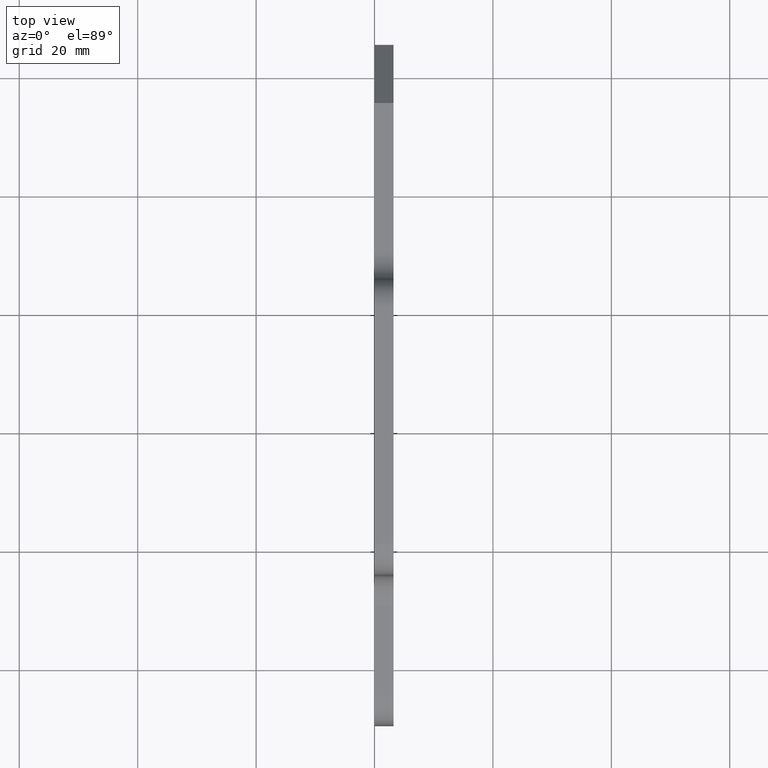
[diagram: clean part render]
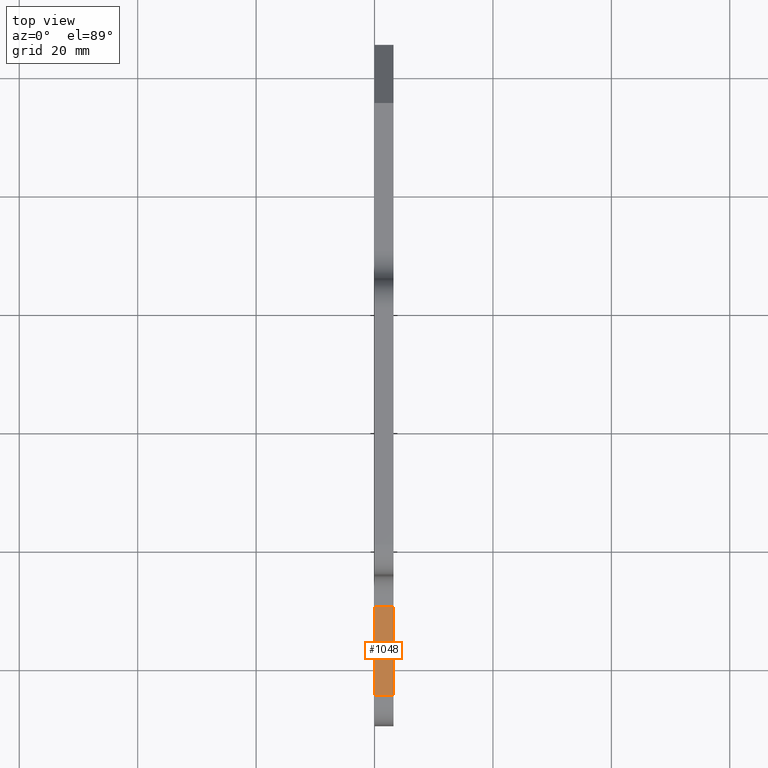
[diagram: same view with one face highlighted and labeled with its STEP entity id]
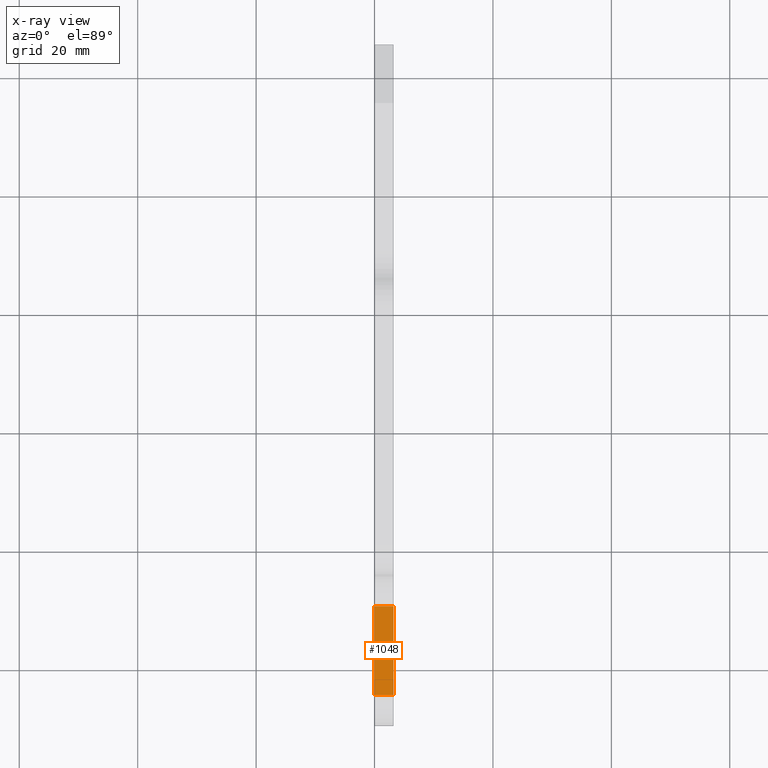
[diagram: x-ray of the same camera — body ghosted, the highlighted face saturated]
A machine part, top view. The second image highlights one B-rep face of the part: STEP entity #1048.
The next image is the same camera in x-ray: the body ghosted, the highlighted face saturated — about 0% of this face is hidden behind the body in this view.
In plain terms, the highlighted face is a freeform B-spline surface patch.
Its self-contained STEP definition (entity closure, byte-faithful):
#974=CARTESIAN_POINT('',(0.0,-29.500000000000000,5.000000000000100));
#975=VERTEX_POINT('',#974);
#991=CARTESIAN_POINT('',(3.200000000000000,-29.500000000000000,5.000000000000100));
#992=VERTEX_POINT('',#991);
#993=CARTESIAN_POINT('',(3.200000000000000,-29.500000000000000,5.000000000000100));
#994=CARTESIAN_POINT('',(0.0,-29.500000000000000,5.000000000000100));
#995=QUASI_UNIFORM_CURVE('',1,(#993,#994),.UNSPECIFIED.,.F.,.U.);
#996=EDGE_CURVE('',#992,#975,#995,.T.);
#1021=CARTESIAN_POINT('',(-0.159839993797779,-28.750750029072911,5.000000000000100));
#1022=CARTESIAN_POINT('',(-0.159839993797779,-45.249250373258448,5.000000000000100));
#1023=CARTESIAN_POINT('',(3.359840079628468,-28.750750029072911,5.000000000000100));
#1024=CARTESIAN_POINT('',(3.359840079628468,-45.249250373258448,5.000000000000100));
#1025=B_SPLINE_SURFACE_WITH_KNOTS('',1,1,((#1021,#1023),(#1022,#1024)),.UNSPECIFIED.,.F.,.F.,.U.,(2,2),(2,2),(0.0,16.498500344185540),(0.0,3.519680073426247),.UNSPECIFIED.);
#1026=CARTESIAN_POINT('',(0.0,-44.500000000000000,5.0));
#1027=VERTEX_POINT('',#1026);
#1028=CARTESIAN_POINT('',(0.0,-44.500000000000000,5.0));
#1029=CARTESIAN_POINT('',(0.0,-29.500000000000000,5.000000000000100));
#1030=QUASI_UNIFORM_CURVE('',1,(#1028,#1029),.UNSPECIFIED.,.F.,.U.);
#1031=EDGE_CURVE('',#1027,#975,#1030,.T.);
#1032=ORIENTED_EDGE('',*,*,#1031,.F.);
#1033=CARTESIAN_POINT('',(3.200000000000000,-44.500000000000000,5.0));
#1034=VERTEX_POINT('',#1033);
#1035=CARTESIAN_POINT('',(3.200000000000000,-44.500000000000000,5.0));
#1036=CARTESIAN_POINT('',(0.0,-44.500000000000000,5.0));
#1037=QUASI_UNIFORM_CURVE('',1,(#1035,#1036),.UNSPECIFIED.,.F.,.U.);
#1038=EDGE_CURVE('',#1034,#1027,#1037,.T.);
#1039=ORIENTED_EDGE('',*,*,#1038,.F.);
#1040=CARTESIAN_POINT('',(3.200000000000000,-44.500000000000000,5.0));
#1041=CARTESIAN_POINT('',(3.200000000000000,-29.500000000000000,5.000000000000100));
#1042=QUASI_UNIFORM_CURVE('',1,(#1040,#1041),.UNSPECIFIED.,.F.,.U.);
#1043=EDGE_CURVE('',#1034,#992,#1042,.T.);
#1044=ORIENTED_EDGE('',*,*,#1043,.T.);
#1045=ORIENTED_EDGE('',*,*,#996,.T.);
#1046=EDGE_LOOP('',(#1032,#1039,#1044,#1045));
#1047=FACE_OUTER_BOUND('',#1046,.T.);
#1048=ADVANCED_FACE('',(#1047),#1025,.T.);